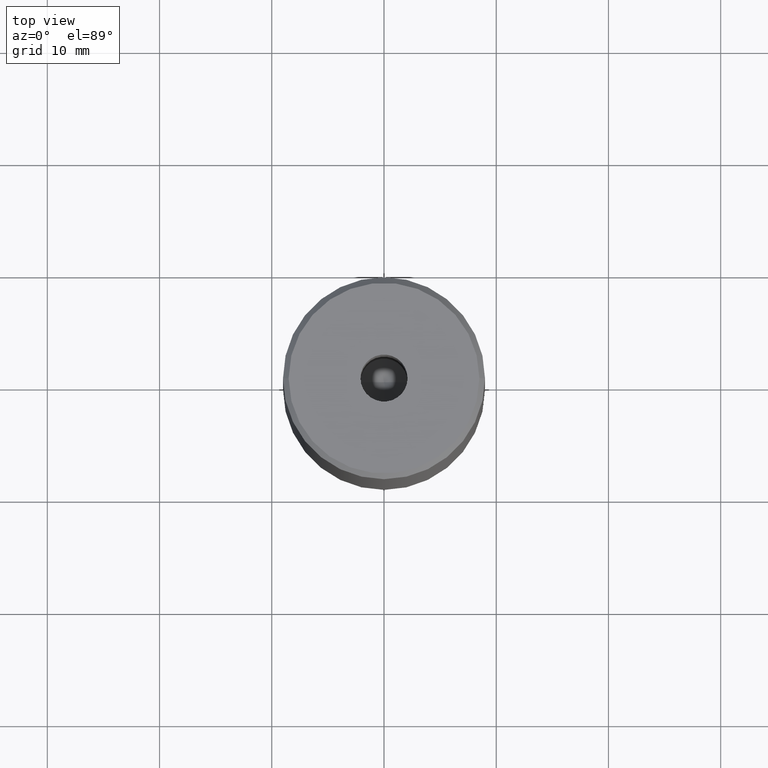
[diagram: clean part render]
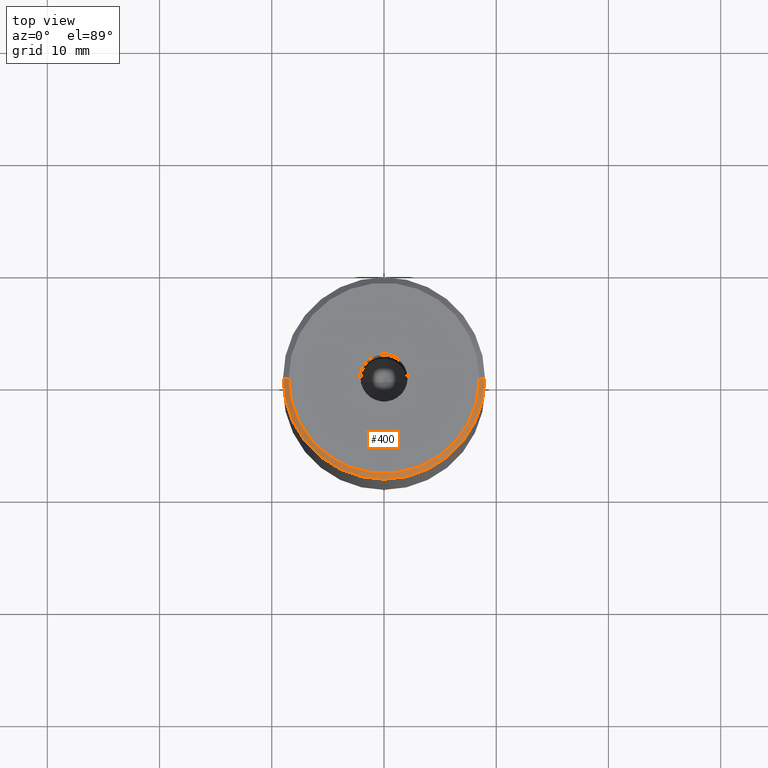
[diagram: same view with one face highlighted and labeled with its STEP entity id]
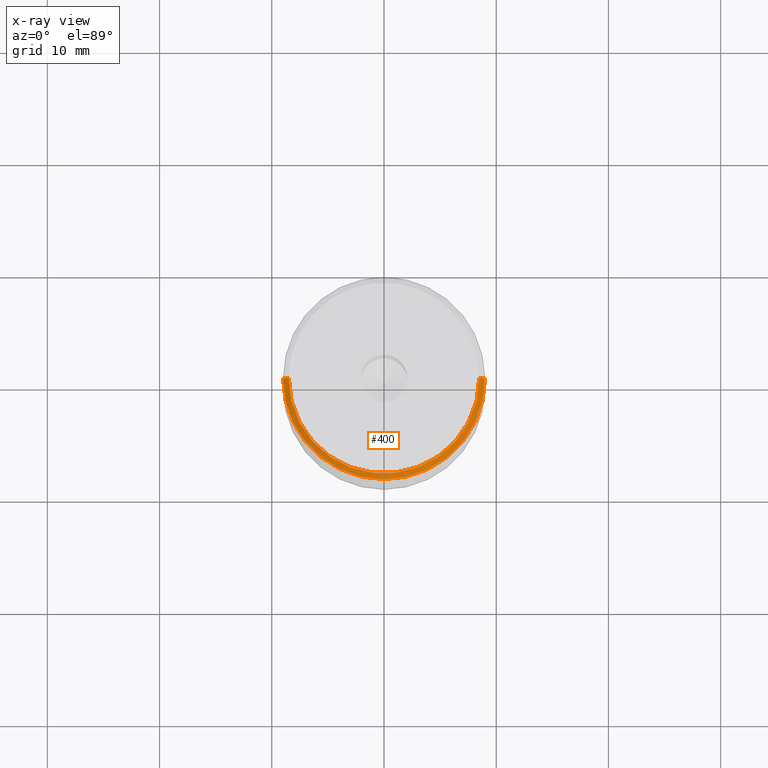
[diagram: x-ray of the same camera — body ghosted, the highlighted face saturated]
A machine part, top view. The second image highlights one B-rep face of the part: STEP entity #400.
The next image is the same camera in x-ray: the body ghosted, the highlighted face saturated — about 0% of this face is hidden behind the body in this view.
In plain terms, the highlighted conical surface has half-angle 45 deg.
Its self-contained STEP definition (entity closure, byte-faithful):
#24 = ORIENTED_EDGE ( 'NONE', *, *, #85, .F. ) ;
#31 = VERTEX_POINT ( 'NONE', #41 ) ;
#40 = CONICAL_SURFACE ( 'NONE', #167, 8.500000000000021316, 0.7853981633974380649 ) ;
#41 = CARTESIAN_POINT ( 'NONE',  ( -9.000000000000000000, 1.102182119232617714E-15, -0.4999999999999882871 ) ) ;
#67 = VERTEX_POINT ( 'NONE', #585 ) ;
#83 = CARTESIAN_POINT ( 'NONE',  ( 0.000000000000000000, 0.000000000000000000, -0.4999999999999882871 ) ) ;
#85 = EDGE_CURVE ( 'NONE', #67, #234, #301, .T. ) ;
#86 = DIRECTION ( 'NONE',  ( 0.000000000000000000, 0.000000000000000000, -1.000000000000000000 ) ) ;
#94 = AXIS2_PLACEMENT_3D ( 'NONE', #535, #98, #463 ) ;
#98 = DIRECTION ( 'NONE',  ( -0.000000000000000000, -0.000000000000000000, 1.000000000000000000 ) ) ;
#158 = EDGE_CURVE ( 'NONE', #234, #565, #243, .T. ) ;
#166 = DIRECTION ( 'NONE',  ( -0.7071067811865402453, 0.000000000000000000, -0.7071067811865549002 ) ) ;
#167 = AXIS2_PLACEMENT_3D ( 'NONE', #361, #322, #505 ) ;
#171 = AXIS2_PLACEMENT_3D ( 'NONE', #83, #86, #579 ) ;
#198 = DIRECTION ( 'NONE',  ( 0.7071067811865402453, 8.659560562354845344E-17, -0.7071067811865549002 ) ) ;
#205 = EDGE_CURVE ( 'NONE', #565, #31, #351, .T. ) ;
#206 = CARTESIAN_POINT ( 'NONE',  ( 9.000000000000000000, 0.000000000000000000, -0.4999999999999882871 ) ) ;
#221 = FACE_OUTER_BOUND ( 'NONE', #231, .T. ) ;
#230 = VECTOR ( 'NONE', #166, 1000.000000000000114 ) ;
#231 = EDGE_LOOP ( 'NONE', ( #350, #24, #333, #268 ) ) ;
#234 = VERTEX_POINT ( 'NONE', #537 ) ;
#243 = LINE ( 'NONE', #552, #546 ) ;
#268 = ORIENTED_EDGE ( 'NONE', *, *, #205, .F. ) ;
#301 = CIRCLE ( 'NONE', #94, 8.500000000000021316 ) ;
#322 = DIRECTION ( 'NONE',  ( 0.000000000000000000, 0.000000000000000000, -1.000000000000000000 ) ) ;
#333 = ORIENTED_EDGE ( 'NONE', *, *, #482, .T. ) ;
#350 = ORIENTED_EDGE ( 'NONE', *, *, #158, .F. ) ;
#351 = CIRCLE ( 'NONE', #171, 9.000000000000000000 ) ;
#361 = CARTESIAN_POINT ( 'NONE',  ( 0.000000000000000000, 0.000000000000000000, 0.000000000000000000 ) ) ;
#400 = ADVANCED_FACE ( 'NONE', ( #221 ), #40, .T. ) ;
#432 = CARTESIAN_POINT ( 'NONE',  ( -8.500000000000021316, 0.000000000000000000, 0.000000000000000000 ) ) ;
#463 = DIRECTION ( 'NONE',  ( 1.000000000000000000, 0.000000000000000000, 0.000000000000000000 ) ) ;
#474 = LINE ( 'NONE', #432, #230 ) ;
#482 = EDGE_CURVE ( 'NONE', #67, #31, #474, .T. ) ;
#505 = DIRECTION ( 'NONE',  ( -1.000000000000000000, 0.000000000000000000, 0.000000000000000000 ) ) ;
#535 = CARTESIAN_POINT ( 'NONE',  ( 0.000000000000000000, 0.000000000000000000, 0.000000000000000000 ) ) ;
#537 = CARTESIAN_POINT ( 'NONE',  ( 8.500000000000021316, 1.071565949253935307E-15, 0.000000000000000000 ) ) ;
#546 = VECTOR ( 'NONE', #198, 1000.000000000000114 ) ;
#552 = CARTESIAN_POINT ( 'NONE',  ( 8.500000000000021316, 1.040949779275252901E-15, 0.000000000000000000 ) ) ;
#565 = VERTEX_POINT ( 'NONE', #206 ) ;
#579 = DIRECTION ( 'NONE',  ( 1.000000000000000000, 0.000000000000000000, 0.000000000000000000 ) ) ;
#585 = CARTESIAN_POINT ( 'NONE',  ( -8.500000000000021316, 0.000000000000000000, 0.000000000000000000 ) ) ;